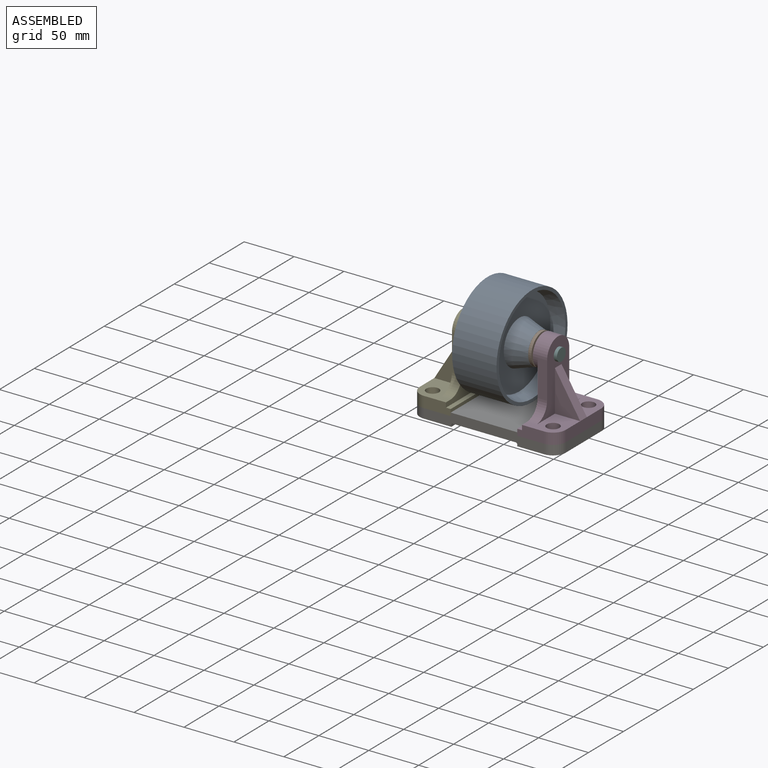
[diagram: assembled view]
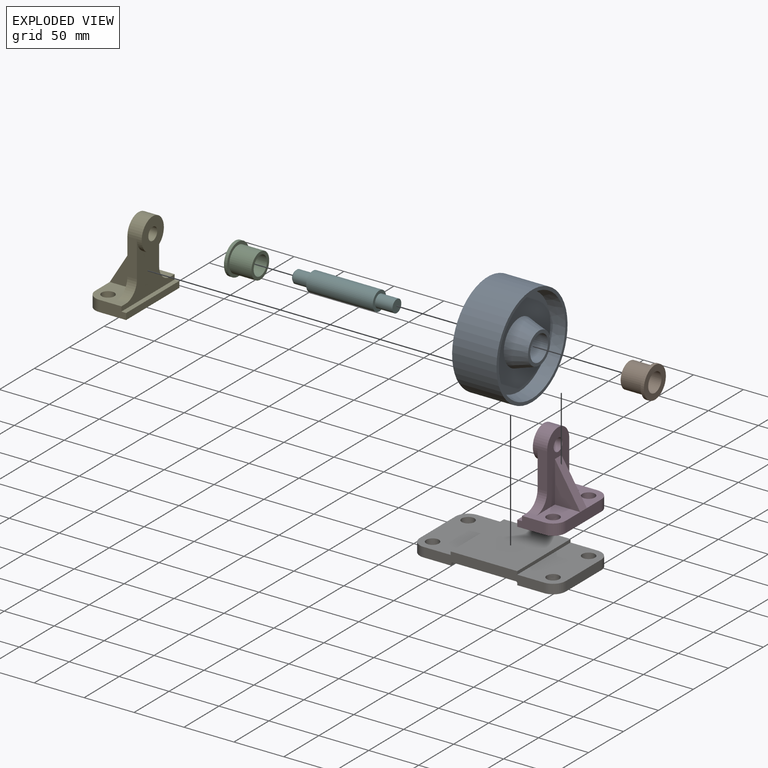
[diagram: exploded view]
GUIDED TOUR — MATED ASSEMBLY (Onshape document 65c4fd5d56fb44197b01243e, AutoMate assembly 65c4fd5d56fb44197b01243e_3cfa5a3ff8bda8e8d5b74ccd_f22e953c8a0d7dd43953916d_default)

This assembly has 7 components, labeled P0..P6 below (a component is one placed occurrence of a part; the same part can appear more than once), held together by 6 mates. A mate is a constraint between two components; its type names the relative motion it leaves free:
  FASTENED — locks the two components together rigidly (no relative motion),
  REVOLUTE — leaves rotation about the listed axis free (a hinge).
Axis/direction vectors are unit vectors and 'through' points are millimeter coordinates, both in the assembly's world frame.

MATES
  1. REVOLUTE "Revolute 3": P0 <-> P2, axis (-1.000, 0.000, 0.000) through (-43.64, -85.05, -49.23) mm
  2. REVOLUTE "Revolute 4": P1 <-> P0, axis (-1.000, 0.000, 0.000) through (15.10, -85.05, -49.23) mm
  3. FASTENED "Fastened 2": P3 <-> P6, direction (0.000, 0.000, -1.000) through (46.85, -59.65, -112.73) mm
  4. REVOLUTE "Revolute 2": P2 <-> P5, axis (-1.000, 0.000, 0.000) through (-46.81, -85.05, -49.23) mm
  5. FASTENED "Fastened 1": P4 <-> P6, direction (0.000, 0.000, -1.000) through (-73.80, -110.45, -112.73) mm
  6. REVOLUTE "Revolute 1": P5 <-> P4, axis (-1.000, 0.000, 0.000) through (-46.81, -85.05, -49.23) mm

ASSEMBLY ORDER
  1. P0 — the base component [order heuristic]
  2. P5 — core [order heuristic]
  3. P2 — core [order heuristic]
  4. P1 — core [order heuristic]
  5. P4 — core [order heuristic]
  6. P3 — core [order heuristic]
  7. P6 [order verified]
Order-tag legend:
  [order verified] — this step's position reverses a verified removal order: the component was checked to insert without passing through the ones already placed.
  [order heuristic] — the first 6 components form the assembly's core: parts whose collision-free extraction could not be verified, listed in mate-graph order.

Of the 7 components, 4 carry the full construction recipe — the FeatureScript program that regenerates the part's solid from scratch; the rest are supplied as boundary geometry only.
Each toured component is shown spotlighted twice — in the assembled view, then in the exploded view, where a leader line traces a displaced component back to its assembled socket (saturated green if recipe-attached, orange if geometry-only; every other component desaturated gray) — followed by its recipe or geometry summary and the mates that hold it.
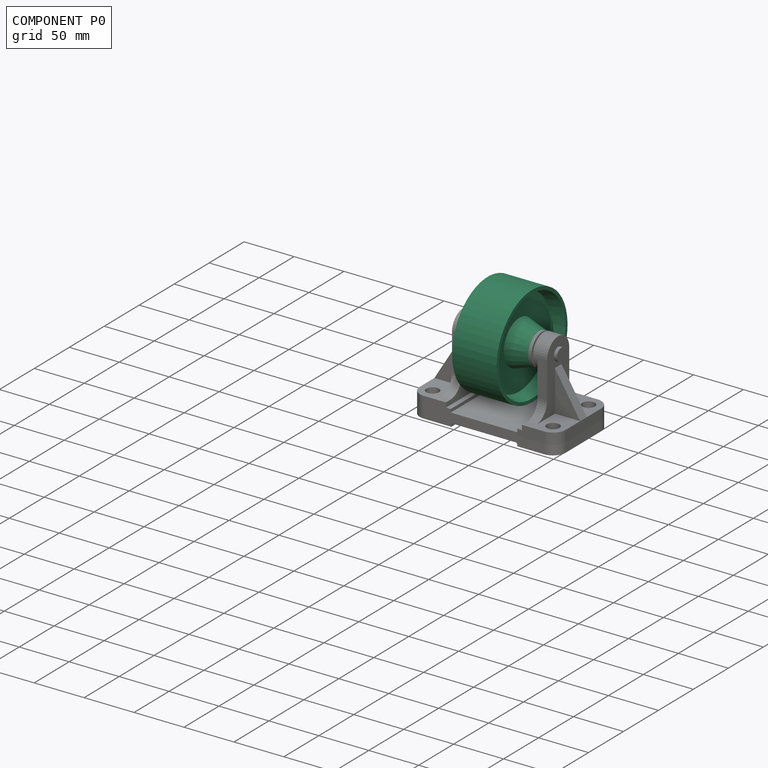
[diagram: component P0 — assembled]
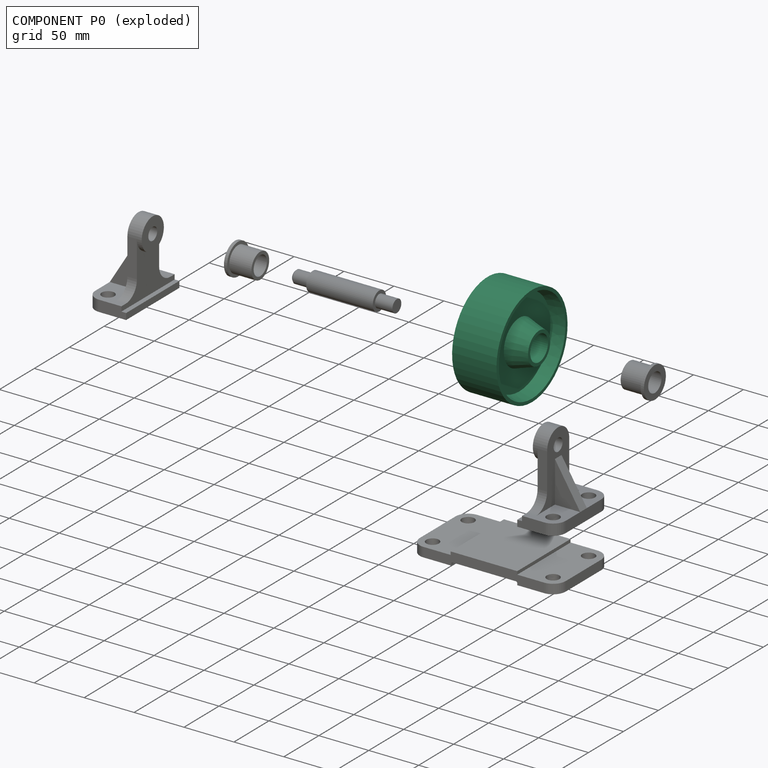
[diagram: component P0 — exploded]
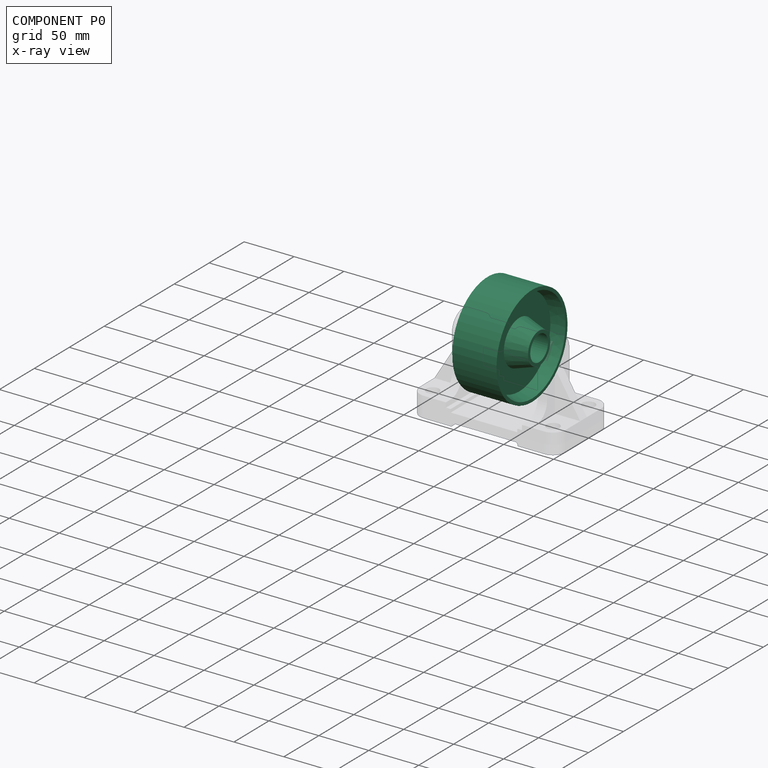
[diagram: component P0 — x-ray view]
COMPONENT P0 — recipe-attached (CADFS 00576677, mesh-verified: the recipe's output STEP matches this component's geometry to below the mesh-comparison resolution (tessellation chordal tolerance ~0.233 mm)).
Held by: REVOLUTE mate "Revolute 3" to P2; REVOLUTE mate "Revolute 4" to P1.
Construction recipe (FeatureScript — the CAD program that rebuilds this solid; sketch coordinates are in the units given by the * unit suffixes, e.g. mm):

FeatureScript 1511;
import(path : "onshape/std/geometry.fs", version : "1511.0");
import(path : "onshape/std/common.fs", version : "1511.0");
const mm = millimeter;
const VERTEX = EntityType.VERTEX;
const EDGE = EntityType.EDGE;
const FACE = EntityType.FACE;
const BODY = EntityType.BODY;
function v(x, y){return vector(x, y);}
function OD(order){return orderDisambiguation(order);}
function OSD(set){return originalSetDisambiguation(set);}
function TD(topology){return topologyDisambiguation(topology);}
function TDD(query){return trueDependencyDisambiguation(query);}
function sQuery(a, b, c) {return sketchEntityQuery(a, b, c);}

annotation { "Feature Type Name" : "Feature", "Feature Type Description" : "" }
export const myFeature = defineFeature(function(context is Context, id is Id, definition is map)
    precondition{}
    {
        {
            var Q0;
            Q0=qCreatedBy(makeId("Right.planeOp"),FACE);
            var sketch = newSketch(context, id + "F0", { "sketchPlane" : qUnion([Q0])});
            skLineSegment(sketch, "E0", {"start": v(-48.97, 0) * mm, "end": v(61.54, 0) * mm});
            skLineSegment(sketch, "E1", {"start": v(-46.8, 36.4) * mm, "end": v(11.94, 36.4) * mm});
            skLineSegment(sketch, "E2", {"start": v(11.94, 36.4) * mm, "end": v(11.94, 39.58) * mm});
            skLineSegment(sketch, "E3", {"start": v(-46.8, 36.4) * mm, "end": v(-46.8, 39.58) * mm});
            skLineSegment(sketch, "E4", {"start": v(-17.43, 74.5) * mm, "end": v(4.8, 74.5) * mm});
            skLineSegment(sketch, "E5", {"start": v(-17.43, 74.5) * mm, "end": v(-39.66, 74.5) * mm});
            skLineSegment(sketch, "E6.0", {"start": v(-7.9, 36.4) * mm, "end": v(-7.9, 74.5) * mm});
            skLineSegment(sketch, "E7.0", {"start": v(-26.96, 36.4) * mm, "end": v(-26.96, 74.5) * mm});
            skLineSegment(sketch, "E8", {"start": v(-39.66, 74.5) * mm, "end": v(-39.66, 71.33) * mm});
            skLineSegment(sketch, "E9", {"start": v(4.8, 74.5) * mm, "end": v(4.8, 71.33) * mm});
            skLineSegment(sketch, "E10", {"start": v(-17.43, 23.7) * mm, "end": v(26.53, 23.7) * mm});
            skLineSegment(sketch, "E11", {"start": v(-7.9, 45.93) * mm, "end": v(11.94, 39.58) * mm});
            skLineSegment(sketch, "E12", {"start": v(-26.96, 45.93) * mm, "end": v(-46.8, 39.58) * mm});
            skLineSegment(sketch, "E13", {"start": v(-7.9, 68.15) * mm, "end": v(4.8, 71.33) * mm});
            skLineSegment(sketch, "E14", {"start": v(-26.96, 68.15) * mm, "end": v(-39.66, 71.33) * mm});
            skSolve(sketch);
        }
        {
            var Q0;
            Q0 = qSketchRegion(id + "F0", true);
            var Q1;
            Q1=sQuery(id+"F0.wireOp",EDGE,"E10");
            revolve(context, id + "F1", {"entities" : qUnion([Q0]), "axis" : qUnion([Q1]), "revolveType" : RevolveType.FULL});
        }
    });
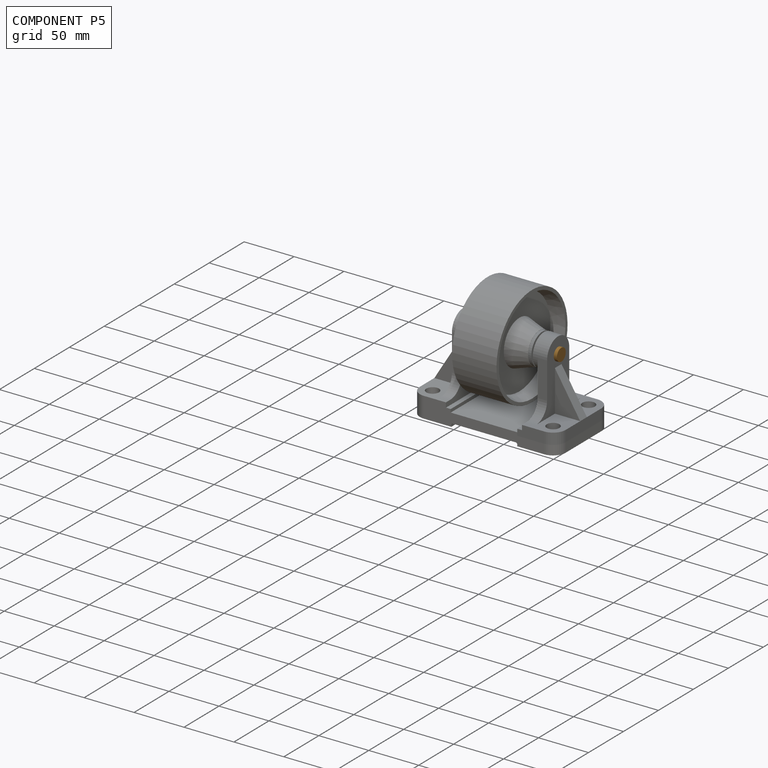
[diagram: component P5 — assembled]
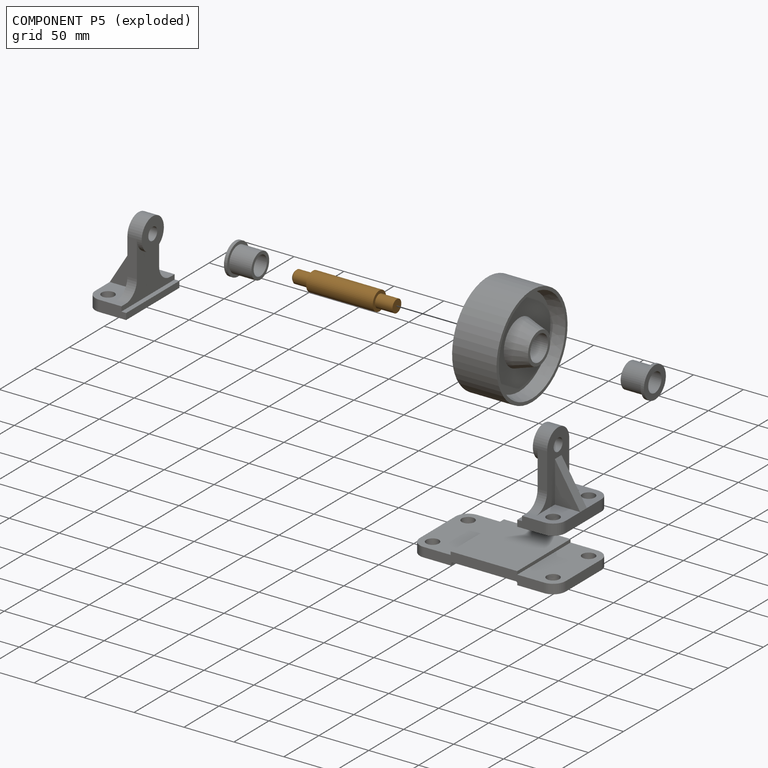
[diagram: component P5 — exploded]
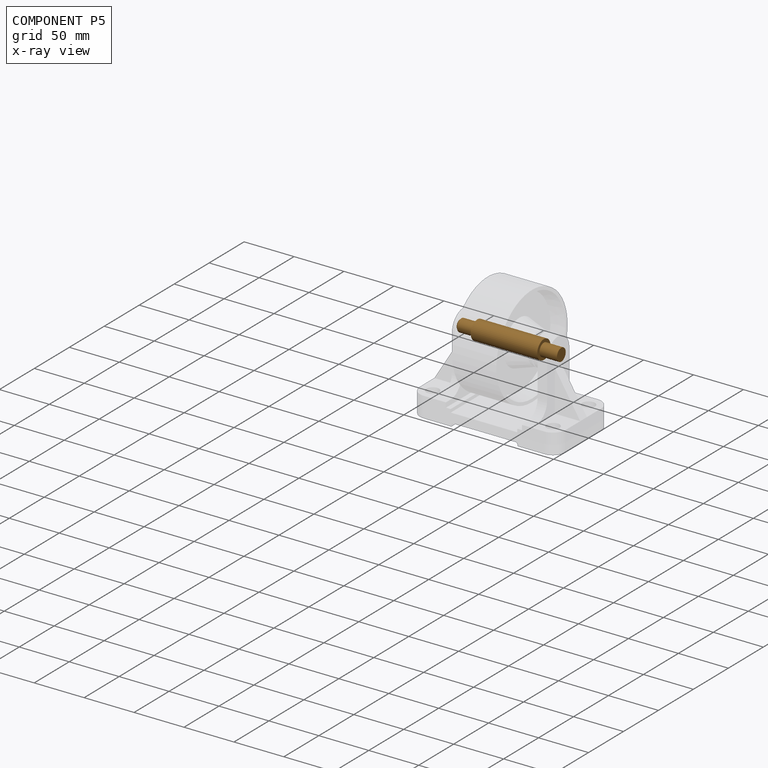
[diagram: component P5 — x-ray view]
COMPONENT P5 — geometry summary (no construction recipe available for this part):
  bounding box: 101.6 x 19.1 x 19.1 mm
  B-rep topology: 1 solid, 10 faces, 30 edges
  volume: 22930 mm^3 (62% of its bounding box)
  symmetry: revolution-symmetric about the y axis through its bounding-box center; mirror-symmetric across its x mid-plane, z mid-plane
Held by: REVOLUTE mate "Revolute 2" to P2; REVOLUTE mate "Revolute 1" to P4.
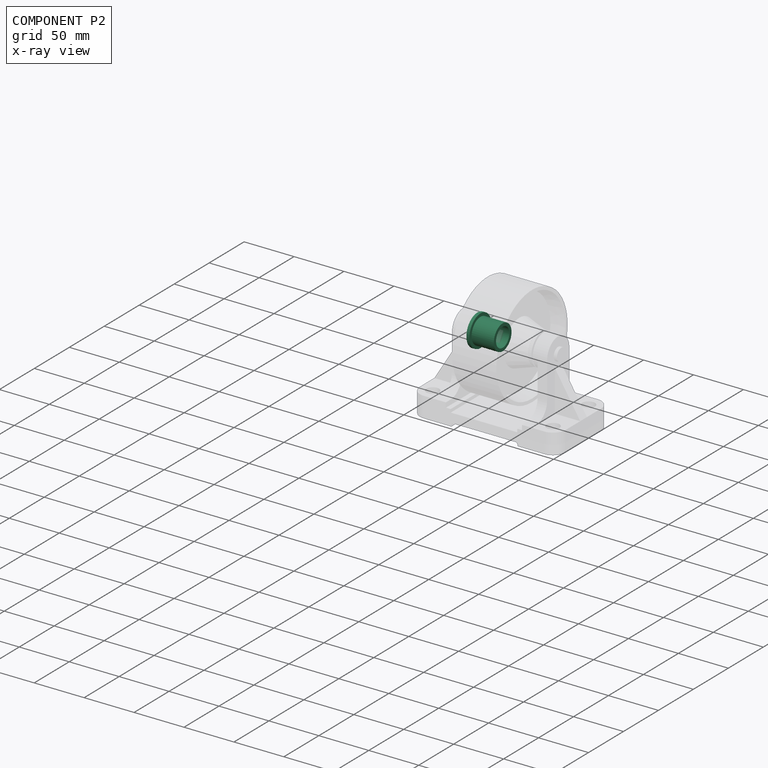
[diagram: component P2 — x-ray view]
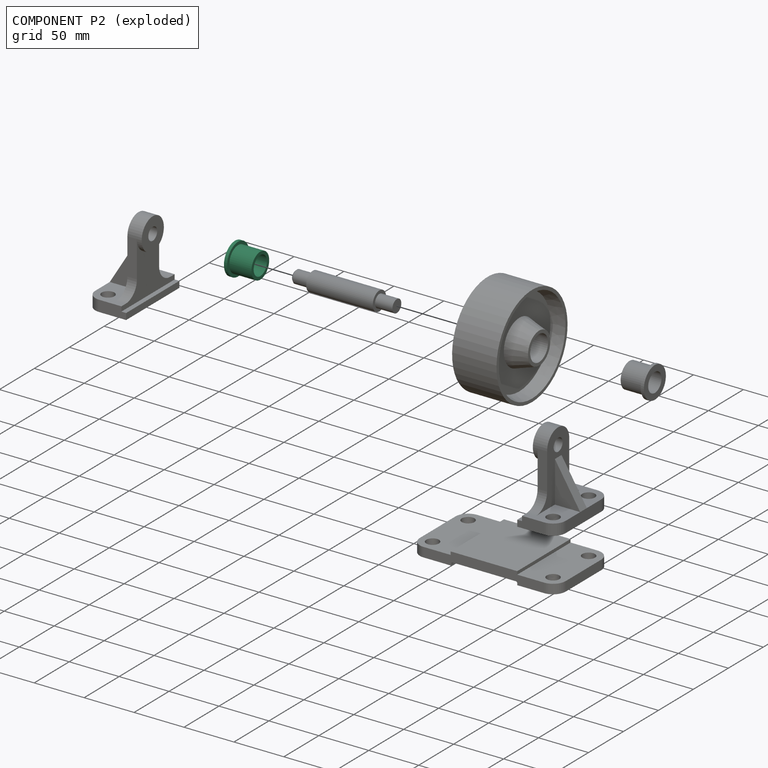
[diagram: component P2 — exploded]
COMPONENT P2 — same part as P1 (CADFS 00576679); its construction recipe is shown at P1.
Held by: REVOLUTE mate "Revolute 3" to P0; REVOLUTE mate "Revolute 2" to P5.
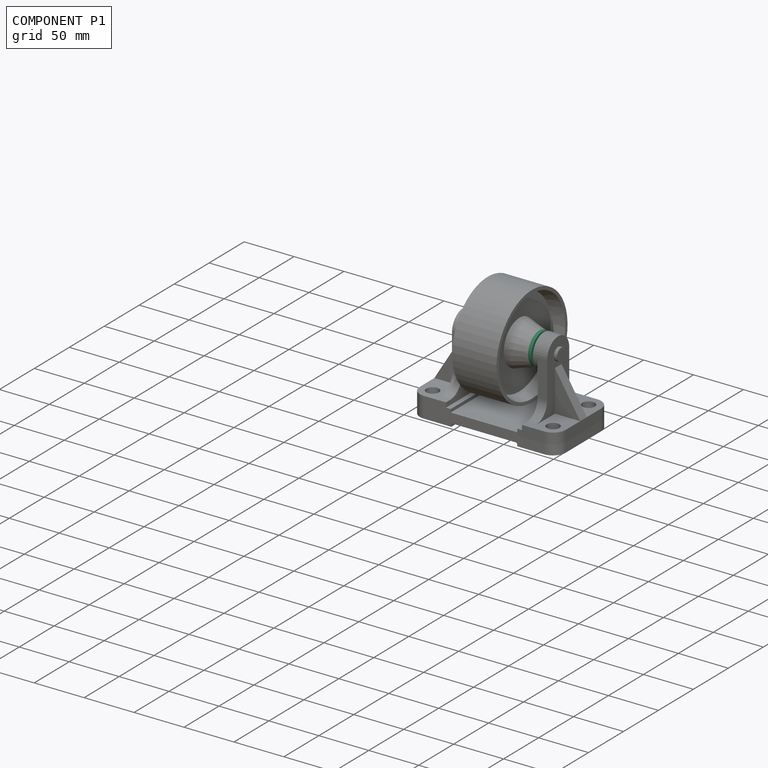
[diagram: component P1 — assembled]
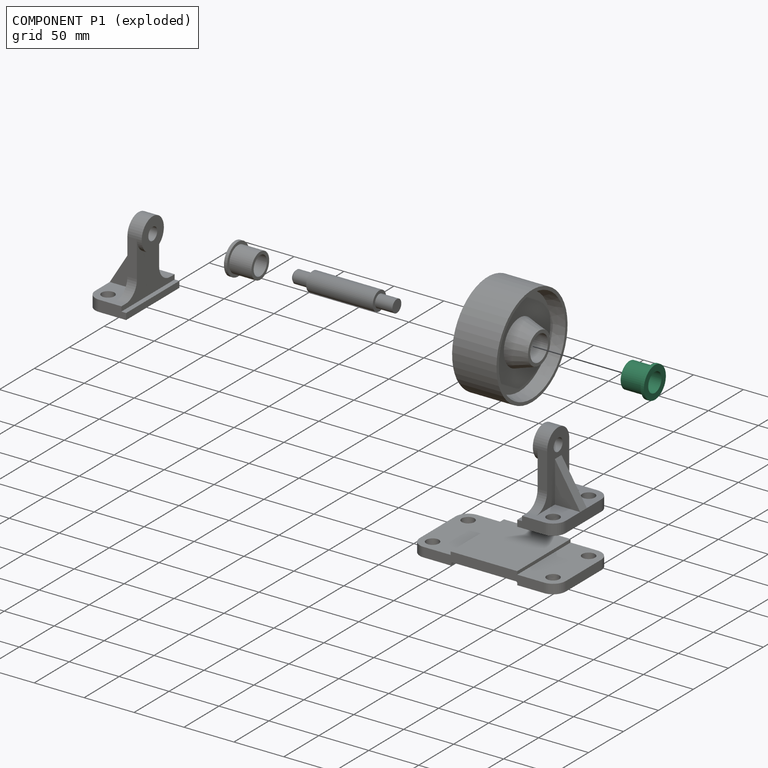
[diagram: component P1 — exploded]
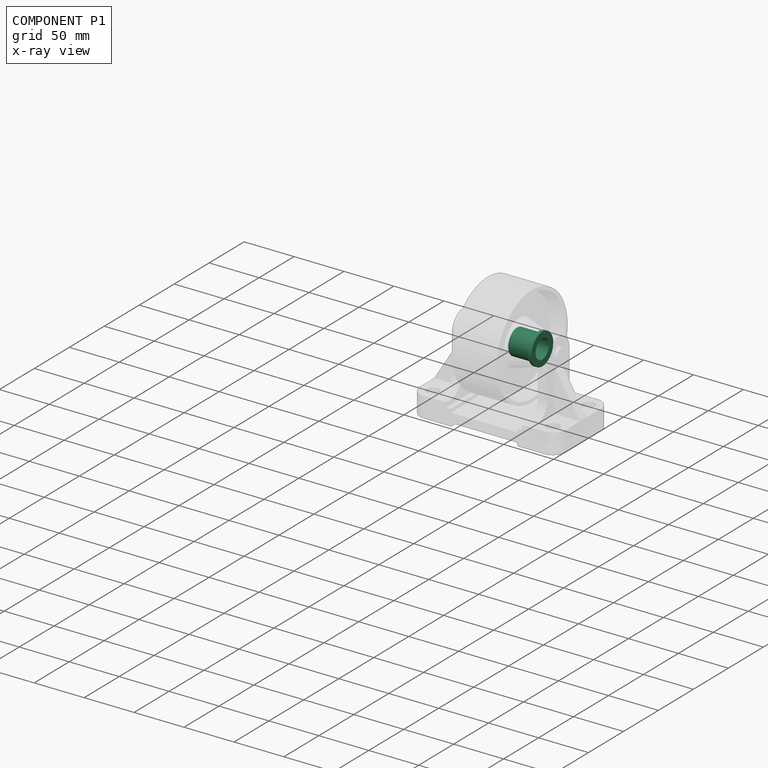
[diagram: component P1 — x-ray view]
COMPONENT P1 — recipe-attached (CADFS 00576679, mesh-verified: the recipe's output STEP matches this component's geometry to below the mesh-comparison resolution (tessellation chordal tolerance ~0.0768 mm)).
Held by: REVOLUTE mate "Revolute 4" to P0.
Construction recipe (FeatureScript — the CAD program that rebuilds this solid; sketch coordinates are in the units given by the * unit suffixes, e.g. mm):

FeatureScript 1511;
import(path : "onshape/std/geometry.fs", version : "1511.0");
import(path : "onshape/std/common.fs", version : "1511.0");
const mm = millimeter;
const VERTEX = EntityType.VERTEX;
const EDGE = EntityType.EDGE;
const FACE = EntityType.FACE;
const BODY = EntityType.BODY;
function v(x, y){return vector(x, y);}
function OD(order){return orderDisambiguation(order);}
function OSD(set){return originalSetDisambiguation(set);}
function TD(topology){return topologyDisambiguation(topology);}
function TDD(query){return trueDependencyDisambiguation(query);}
function sQuery(a, b, c) {return sketchEntityQuery(a, b, c);}

annotation { "Feature Type Name" : "Feature", "Feature Type Description" : "" }
export const myFeature = defineFeature(function(context is Context, id is Id, definition is map)
    precondition{}
    {
        {
            var Q0;
            Q0=qCreatedBy(makeId("Front.planeOp"),FACE);
            var sketch = newSketch(context, id + "F0", { "sketchPlane" : qUnion([Q0])});
            skCircle(sketch, "E0", {"center": v(0, 0) * mm, "radius": 15.75 * mm});
            skCircle(sketch, "E1", {"center": v(0, 0) * mm, "radius": 12.7 * mm});
            skSolve(sketch);
        }
        {
            var Q0;
            Q0=makeQuery(id+"F0.imprint","IMPRINT",FACE,{"disambiguationData":[TD([[makeQuery(id+"F0.imprint","IMPRINT",EDGE,{"derivedFrom":sQuery(id+"F0.wireOp",EDGE,"E0")}),1.0]])]});
            var Q1;
            Q1=makeQuery(id+"F0.imprint","IMPRINT",FACE,{"disambiguationData":[TD([[makeQuery(id+"F0.imprint","IMPRINT",EDGE,{"derivedFrom":sQuery(id+"F0.wireOp",EDGE,"E1")}),1.0]])]});
            extrude(context, id + "F1", {"entities" : qUnion([Q0, Q1]), "depth" : -3.17 * mm, "offsetDistance" : 25.4 * mm});
        }
        {
            var Q0;
            Q0=makeQuery(id+"F0.imprint","IMPRINT",FACE,{"disambiguationData":[TD([[makeQuery(id+"F0.imprint","IMPRINT",EDGE,{"derivedFrom":sQuery(id+"F0.wireOp",EDGE,"E1")}),1.0]])]});
            extrude(context, id + "F2", {"entities" : qUnion([Q0]), "operationType" : NewBodyOperationType.ADD, "depth" : -25.4 * mm, "offsetDistance" : 25.4 * mm});
        }
        {
            var Q0;
            Q0=sQuery(id+"F0.wireOp",VERTEX,"E0.center");
            var Q1;
            Q1=makeQuery(id+"F1.opExtrude","SWEPT_BODY",BODY,{"disambiguationData":[OSD([sQuery(id+"F0.wireOp",EDGE,"E0")])]});
            hole(context, id + "F3", {"style" : HoleStyle.SIMPLE, "endStyle" : HoleEndStyle.THROUGH, "holeDiameter" : 19.05 * mm, "majorDiameter" : 6.35 * mm, "isTappedThrough" : true, "tappedDepth" : 12.7 * mm, "tapClearance" : 3, "locations" : qUnion([Q0]), "scope" : qUnion([Q1])});
        }
    });
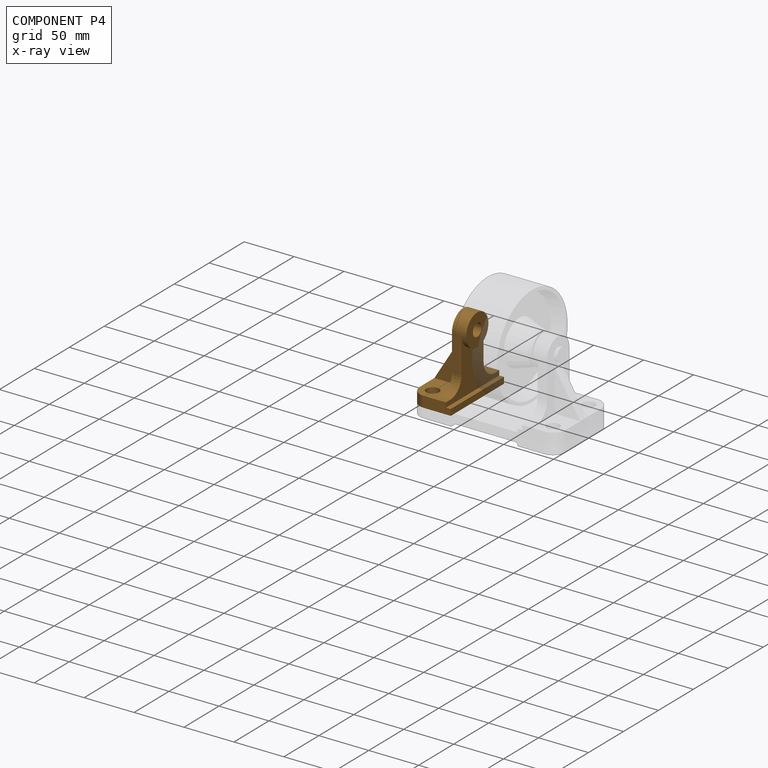
[diagram: component P4 — x-ray view]
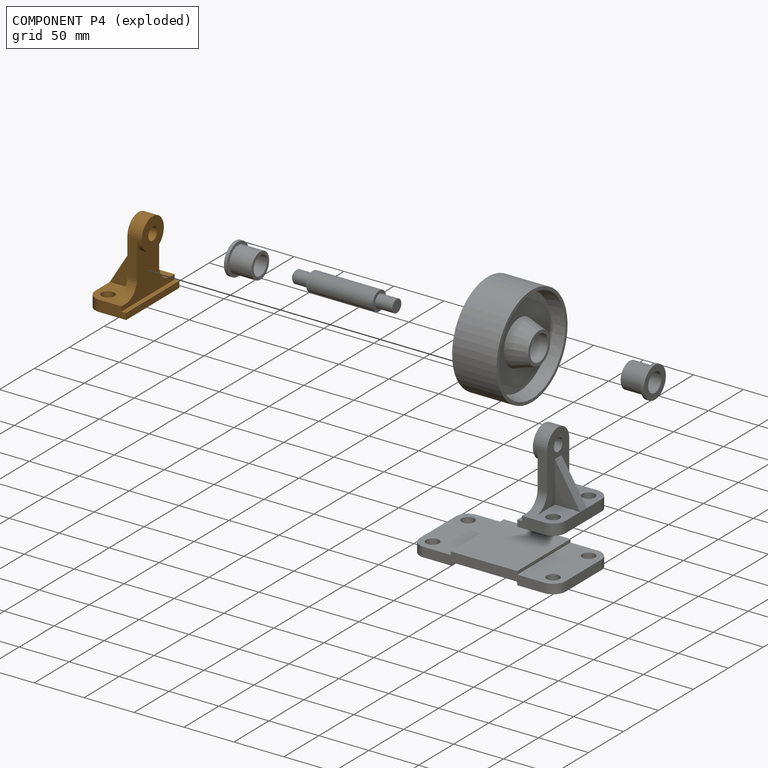
[diagram: component P4 — exploded]
COMPONENT P4 — geometry summary (no construction recipe available for this part):
  bounding box: 79.4 x 76.2 x 39.7 mm
  B-rep topology: 1 solid, 24 faces, 128 edges
  volume: 55891 mm^3 (23% of its bounding box)
  symmetry: mirror-symmetric across its x mid-plane
Held by: FASTENED mate "Fastened 1" to P6; REVOLUTE mate "Revolute 1" to P5.
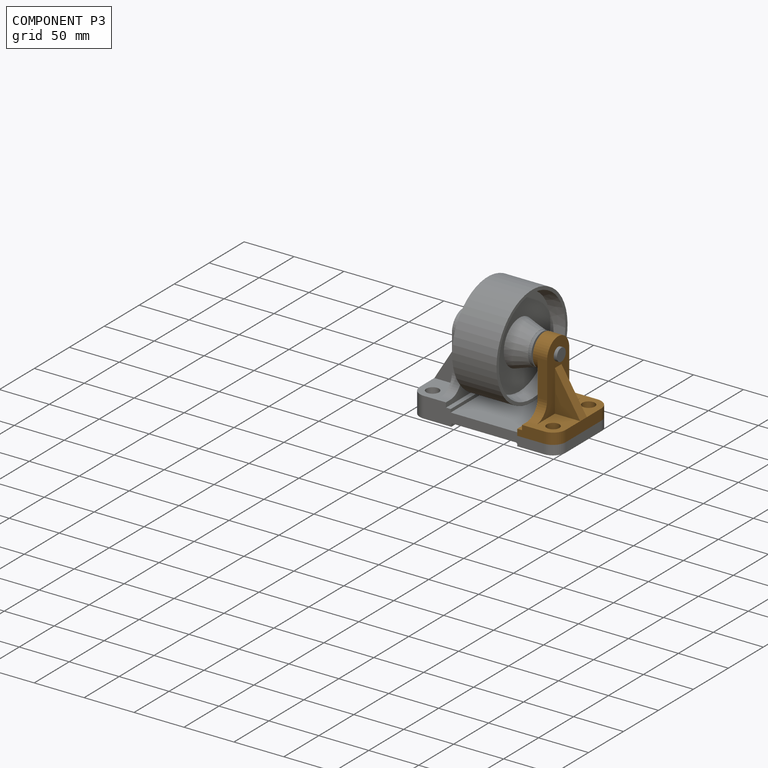
[diagram: component P3 — assembled]
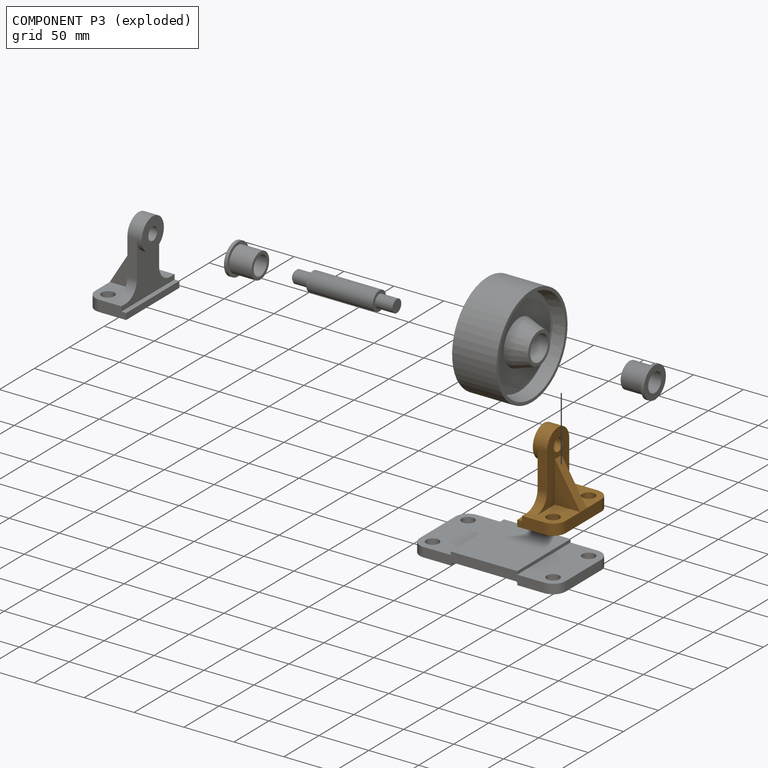
[diagram: component P3 — exploded]
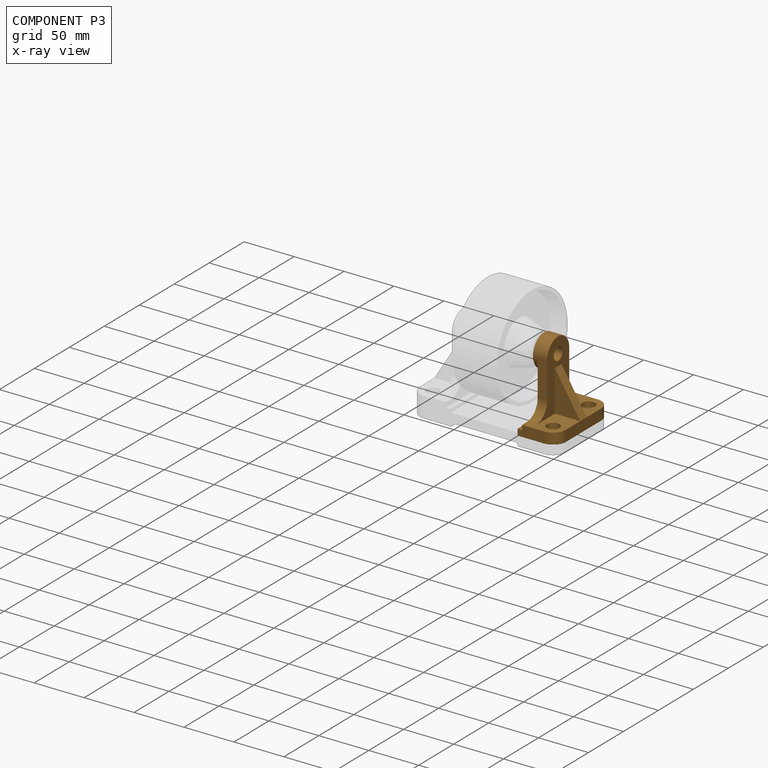
[diagram: component P3 — x-ray view]
COMPONENT P3 — geometry summary (no construction recipe available for this part):
  bounding box: 79.4 x 76.2 x 39.7 mm
  B-rep topology: 1 solid, 24 faces, 128 edges
  volume: 55891 mm^3 (23% of its bounding box)
  symmetry: mirror-symmetric across its x mid-plane
Held by: FASTENED mate "Fastened 2" to P6.
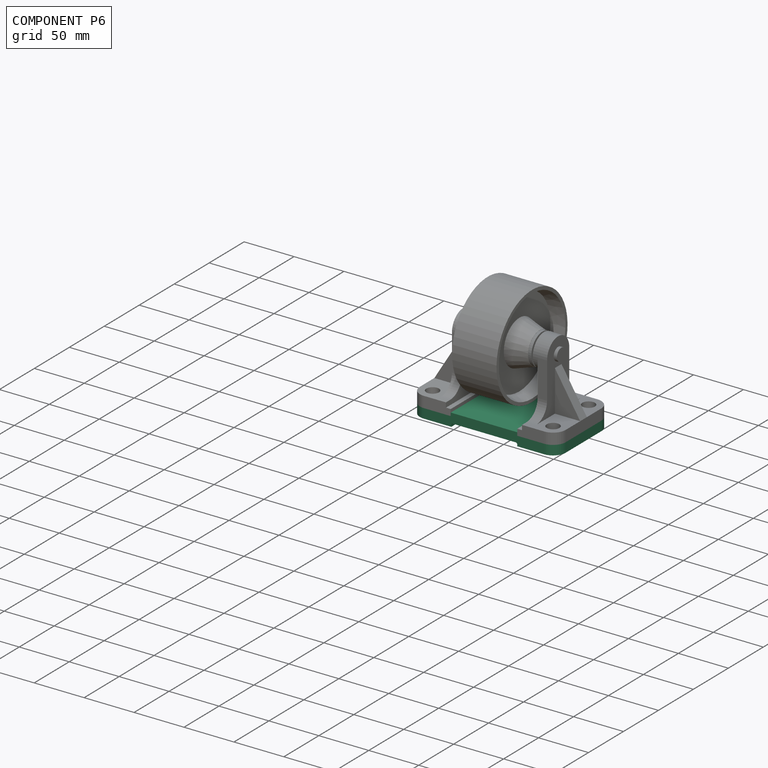
[diagram: component P6 — assembled]
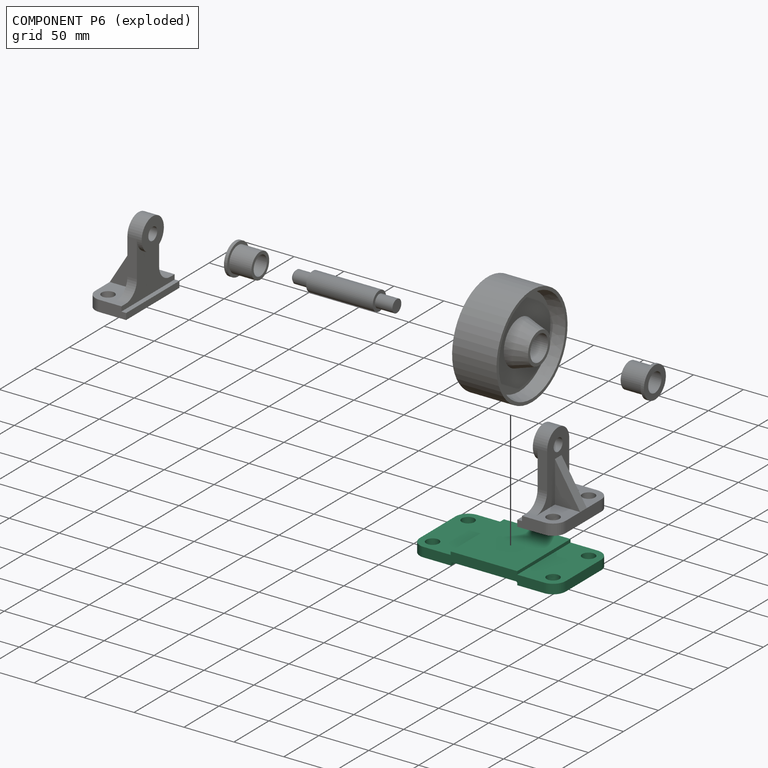
[diagram: component P6 — exploded]
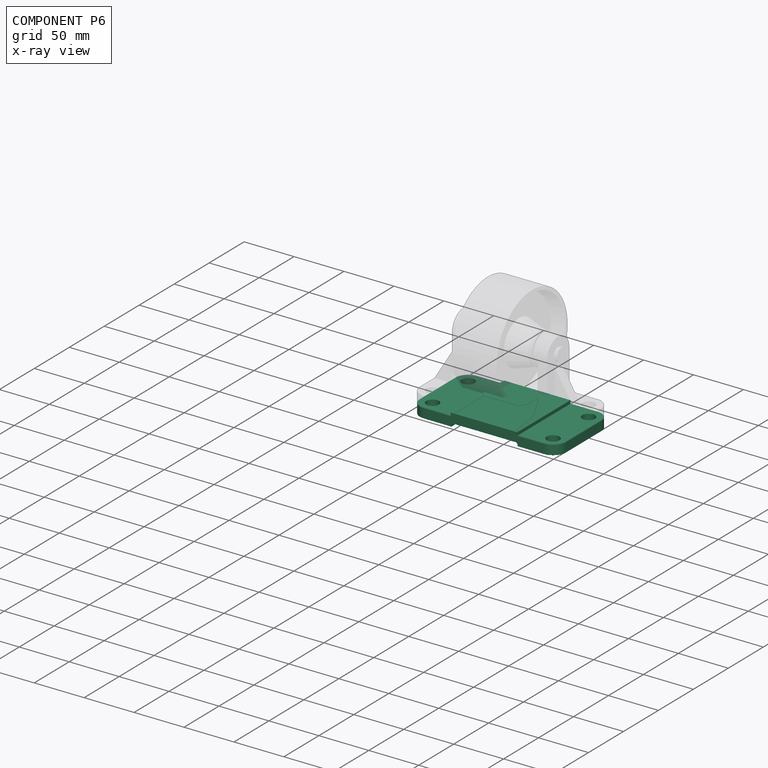
[diagram: component P6 — x-ray view]
COMPONENT P6 — recipe-attached (CADFS 00576680, mesh-verified: the recipe's output STEP matches this component's geometry to below the mesh-comparison resolution (tessellation chordal tolerance ~0.248 mm)).
Held by: FASTENED mate "Fastened 2" to P3; FASTENED mate "Fastened 1" to P4.
Construction recipe (FeatureScript — the CAD program that rebuilds this solid; sketch coordinates are in the units given by the * unit suffixes, e.g. mm):

FeatureScript 1511;
import(path : "onshape/std/geometry.fs", version : "1511.0");
import(path : "onshape/std/common.fs", version : "1511.0");
const mm = millimeter;
const VERTEX = EntityType.VERTEX;
const EDGE = EntityType.EDGE;
const FACE = EntityType.FACE;
const BODY = EntityType.BODY;
function v(x, y){return vector(x, y);}
function OD(order){return orderDisambiguation(order);}
function OSD(set){return originalSetDisambiguation(set);}
function TD(topology){return topologyDisambiguation(topology);}
function TDD(query){return trueDependencyDisambiguation(query);}
function sQuery(a, b, c) {return sketchEntityQuery(a, b, c);}

annotation { "Feature Type Name" : "Feature", "Feature Type Description" : "" }
export const myFeature = defineFeature(function(context is Context, id is Id, definition is map)
    precondition{}
    {
        {
            var Q0;
            Q0=qCreatedBy(makeId("Top.planeOp"),FACE);
            var sketch = newSketch(context, id + "F0", { "sketchPlane" : qUnion([Q0])});
            skLineSegment(sketch, "E0.bottom", {"start": v(-60.32, 38.1) * mm, "end": v(60.33, 38.1) * mm});
            skLineSegment(sketch, "E0.top", {"start": v(-60.33, -38.1) * mm, "end": v(60.33, -38.1) * mm});
            skLineSegment(sketch, "E0.left", {"start": v(-73.02, 25.4) * mm, "end": v(-73.03, -25.4) * mm});
            skLineSegment(sketch, "E0.right", {"start": v(73.03, 25.4) * mm, "end": v(73.03, -25.4) * mm});
            skPoint(sketch, "E0.middle", {"position": v(0, 0) * mm});
            skPoint(sketch, "E1.visualSharp", {"position": v(-73.02, 38.1) * mm});
            skArc(sketch, "E1.filletArc", {"start": v(-60.33, 38.1) * mm, "mid": v(-69.3, 34.38) * mm, "end": v(-73.03, 25.4) * mm});
            skPoint(sketch, "E2.visualSharp", {"position": v(73.03, 38.1) * mm});
            skArc(sketch, "E2.filletArc", {"start": v(73.03, 25.4) * mm, "mid": v(69.3, 34.38) * mm, "end": v(60.33, 38.1) * mm});
            skPoint(sketch, "E3.visualSharp", {"position": v(73.03, -38.1) * mm});
            skArc(sketch, "E3.filletArc", {"start": v(60.33, -38.1) * mm, "mid": v(69.3, -34.38) * mm, "end": v(73.03, -25.4) * mm});
            skPoint(sketch, "E4.visualSharp", {"position": v(-73.03, -38.1) * mm});
            skArc(sketch, "E4.filletArc", {"start": v(-73.03, -25.4) * mm, "mid": v(-69.3, -34.38) * mm, "end": v(-60.33, -38.1) * mm});
            skCircle(sketch, "E5", {"center": v(-60.33, 25.4) * mm, "radius": 6.35 * mm});
            skCircle(sketch, "E6", {"center": v(60.33, 25.4) * mm, "radius": 6.35 * mm});
            skCircle(sketch, "E7", {"center": v(-60.33, -25.4) * mm, "radius": 6.35 * mm});
            skCircle(sketch, "E8", {"center": v(60.33, -25.4) * mm, "radius": 6.35 * mm});
            skLineSegment(sketch, "E9", {"start": v(-33.34, 38.1) * mm, "end": v(-33.34, -38.1) * mm});
            skLineSegment(sketch, "E10", {"start": v(33.34, 38.1) * mm, "end": v(33.34, -38.1) * mm});
            skSolve(sketch);
        }
        {
            var Q0;
            {var subQ0=sQuery(id+"F0.wireOp",EDGE,"E9");Q0=makeQuery(id+"F0.imprint","IMPRINT",FACE,{"disambiguationData":[TD([[makeQuery(id+"F0.imprint","IMPRINT",EDGE,{"derivedFrom":subQ0}),1.0]])]});}
            var Q1;
            Q1=makeQuery(id+"F0.imprint","IMPRINT",FACE,{"disambiguationData":[TD([[makeQuery(id+"F0.imprint","IMPRINT",EDGE,{"derivedFrom":sQuery(id+"F0.wireOp",EDGE,"E0.right")}),-1.0]])]});
            var Q2;
            Q2=makeQuery(id+"F0.imprint","IMPRINT",FACE,{"disambiguationData":[TD([[makeQuery(id+"F0.imprint","IMPRINT",EDGE,{"derivedFrom":sQuery(id+"F0.wireOp",EDGE,"E0.left")}),1.0]])]});
            extrude(context, id + "F1", {"entities" : qUnion([Q0, Q1, Q2]), "depth" : 9.52 * mm, "offsetDistance" : 25.4 * mm});
        }
        {
            var Q0;
            Q0=makeQuery(id+"F1.opExtrude","CAP_FACE",FACE,{"disambiguationData":[OSD([sQuery(id+"F0.wireOp",EDGE,"E0.bottom"),sQuery(id+"F0.wireOp",EDGE,"E0.top"),sQuery(id+"F0.wireOp",EDGE,"E0.left"),sQuery(id+"F0.wireOp",EDGE,"E0.right"),sQuery(id+"F0.wireOp",EDGE,"E1.filletArc"),sQuery(id+"F0.wireOp",EDGE,"E2.filletArc"),sQuery(id+"F0.wireOp",EDGE,"E3.filletArc"),sQuery(id+"F0.wireOp",EDGE,"E4.filletArc"),sQuery(id+"F0.wireOp",EDGE,"E5"),sQuery(id+"F0.wireOp",EDGE,"E6"),sQuery(id+"F0.wireOp",EDGE,"E7"),sQuery(id+"F0.wireOp",EDGE,"E8")])],"isStart":false});
            var sketch = newSketch(context, id + "F2", { "sketchPlane" : qUnion([Q0])});
            skLineSegment(sketch, "E11", {"start": v(-33.34, -38.1) * mm, "end": v(-33.34, 38.1) * mm});
            skLineSegment(sketch, "E12", {"start": v(33.34, -38.1) * mm, "end": v(33.34, 38.1) * mm});
            skSolve(sketch);
        }
        {
            var Q0;
            Q0 = qSketchRegion(id + "F2", true);
            var Q1;
            {var subQ0=sQuery(id+"F2.wireOp",EDGE,"E11");Q1=makeQuery(id+"F2.imprint","IMPRINT",FACE,{"disambiguationData":[TD([[makeQuery(id+"F2.imprint","IMPRINT",EDGE,{"derivedFrom":subQ0}),-1.0]])]});}
            extrude(context, id + "F3", {"entities" : qUnion([Q0, Q1]), "operationType" : NewBodyOperationType.ADD, "depth" : 3.17 * mm, "offsetDistance" : 25.4 * mm});
        }
        {
            var Q0;
            Q0=makeQuery(id+"F1.opExtrude","CAP_FACE",FACE,{"disambiguationData":[OSD([sQuery(id+"F0.wireOp",EDGE,"E0.bottom"),sQuery(id+"F0.wireOp",EDGE,"E0.top"),sQuery(id+"F0.wireOp",EDGE,"E0.left"),sQuery(id+"F0.wireOp",EDGE,"E0.right"),sQuery(id+"F0.wireOp",EDGE,"E1.filletArc"),sQuery(id+"F0.wireOp",EDGE,"E2.filletArc"),sQuery(id+"F0.wireOp",EDGE,"E3.filletArc"),sQuery(id+"F0.wireOp",EDGE,"E4.filletArc"),sQuery(id+"F0.wireOp",EDGE,"E5"),sQuery(id+"F0.wireOp",EDGE,"E6"),sQuery(id+"F0.wireOp",EDGE,"E7"),sQuery(id+"F0.wireOp",EDGE,"E8")])],"isStart":true});
            var sketch = newSketch(context, id + "F4", { "sketchPlane" : qUnion([Q0])});
            skLineSegment(sketch, "E13", {"start": v(33.34, 38.1) * mm, "end": v(33.34, -38.1) * mm});
            skLineSegment(sketch, "E14", {"start": v(-32.63, 38.1) * mm, "end": v(-34.04, -38.1) * mm});
            skSolve(sketch);
        }
        {
            var Q0;
            Q0 = qSketchRegion(id + "F4", true);
            var Q1;
            {var subQ0=sQuery(id+"F4.wireOp",EDGE,"E13");Q1=makeQuery(id+"F4.imprint","IMPRINT",FACE,{"disambiguationData":[TD([[makeQuery(id+"F4.imprint","IMPRINT",EDGE,{"derivedFrom":subQ0}),-1.0]])]});}
            extrude(context, id + "F5", {"entities" : qUnion([Q0, Q1]), "operationType" : NewBodyOperationType.REMOVE, "oppositeDirection" : true, "depth" : 3.17 * mm, "offsetDistance" : 25.4 * mm});
        }
        {
            var Q0;
            Q0=makeQuery(id+"F5.boolean.opBoolean","COPY",EDGE,{"derivedFrom":makeQuery(id+"F5.opExtrude","CAP_EDGE",EDGE,{"disambiguationData":[OSD([sQuery(id+"F4.wireOp",EDGE,"E13")])],"isStart":false})});
            var Q1;
            Q1=makeQuery(id+"F5.boolean.opBoolean","COPY",EDGE,{"derivedFrom":makeQuery(id+"F5.opExtrude","CAP_EDGE",EDGE,{"disambiguationData":[OSD([sQuery(id+"F4.wireOp",EDGE,"E14")])],"isStart":false})});
            fillet(context, id + "F6", {"entities" : qUnion([Q0, Q1]), "radius" : 1.59 * mm, "tangentPropagation" : true, "allowEdgeOverflow" : false});
        }
    });
PROVENANCE & LICENSES
Assembly (occurrences, transforms, mates, per-part STEP geometry): AutoMate dataset, Zenodo record 7776208, CC0.
Construction recipes: CADFS (HuggingFace VladPyatov/CADFS, CC-BY-4.0, layered over the ABC dataset), FeatureScript reconstruction programs keyed by ABC model id.
Join: ABC meta listings map ABC model id -> Onshape documentId; within a shared document, parts are matched by geometric signature (bounding-box dims + volume at 0.1% relative tolerance, exact B-rep face/solid counts).
Verification: 4 of this assembly's 7 components carry a recipe attachment, and every attachment is mesh-verified: the CADFS STEP and the AutoMate member STEP were compared as meshes in their shared local frame (symmetric sampled-point-to-mesh distance); worst across the 4 attachments: below the mesh-comparison resolution (tessellation chordal tolerance ~0.248 mm) on a 165 mm part.
Renders: orthographic iso camera (az 35 / el 25); the floor grid conveys scale (grid pitch printed in each image; no ruler). In the exploded view each component is displaced by its stored offset vector: the offsets alone carry the explosion direction (mate normal/axis signs are not orientation cues and do not encode it), and separation distances are assigned per mate-chain, not proportionally to assembly-order depth.
